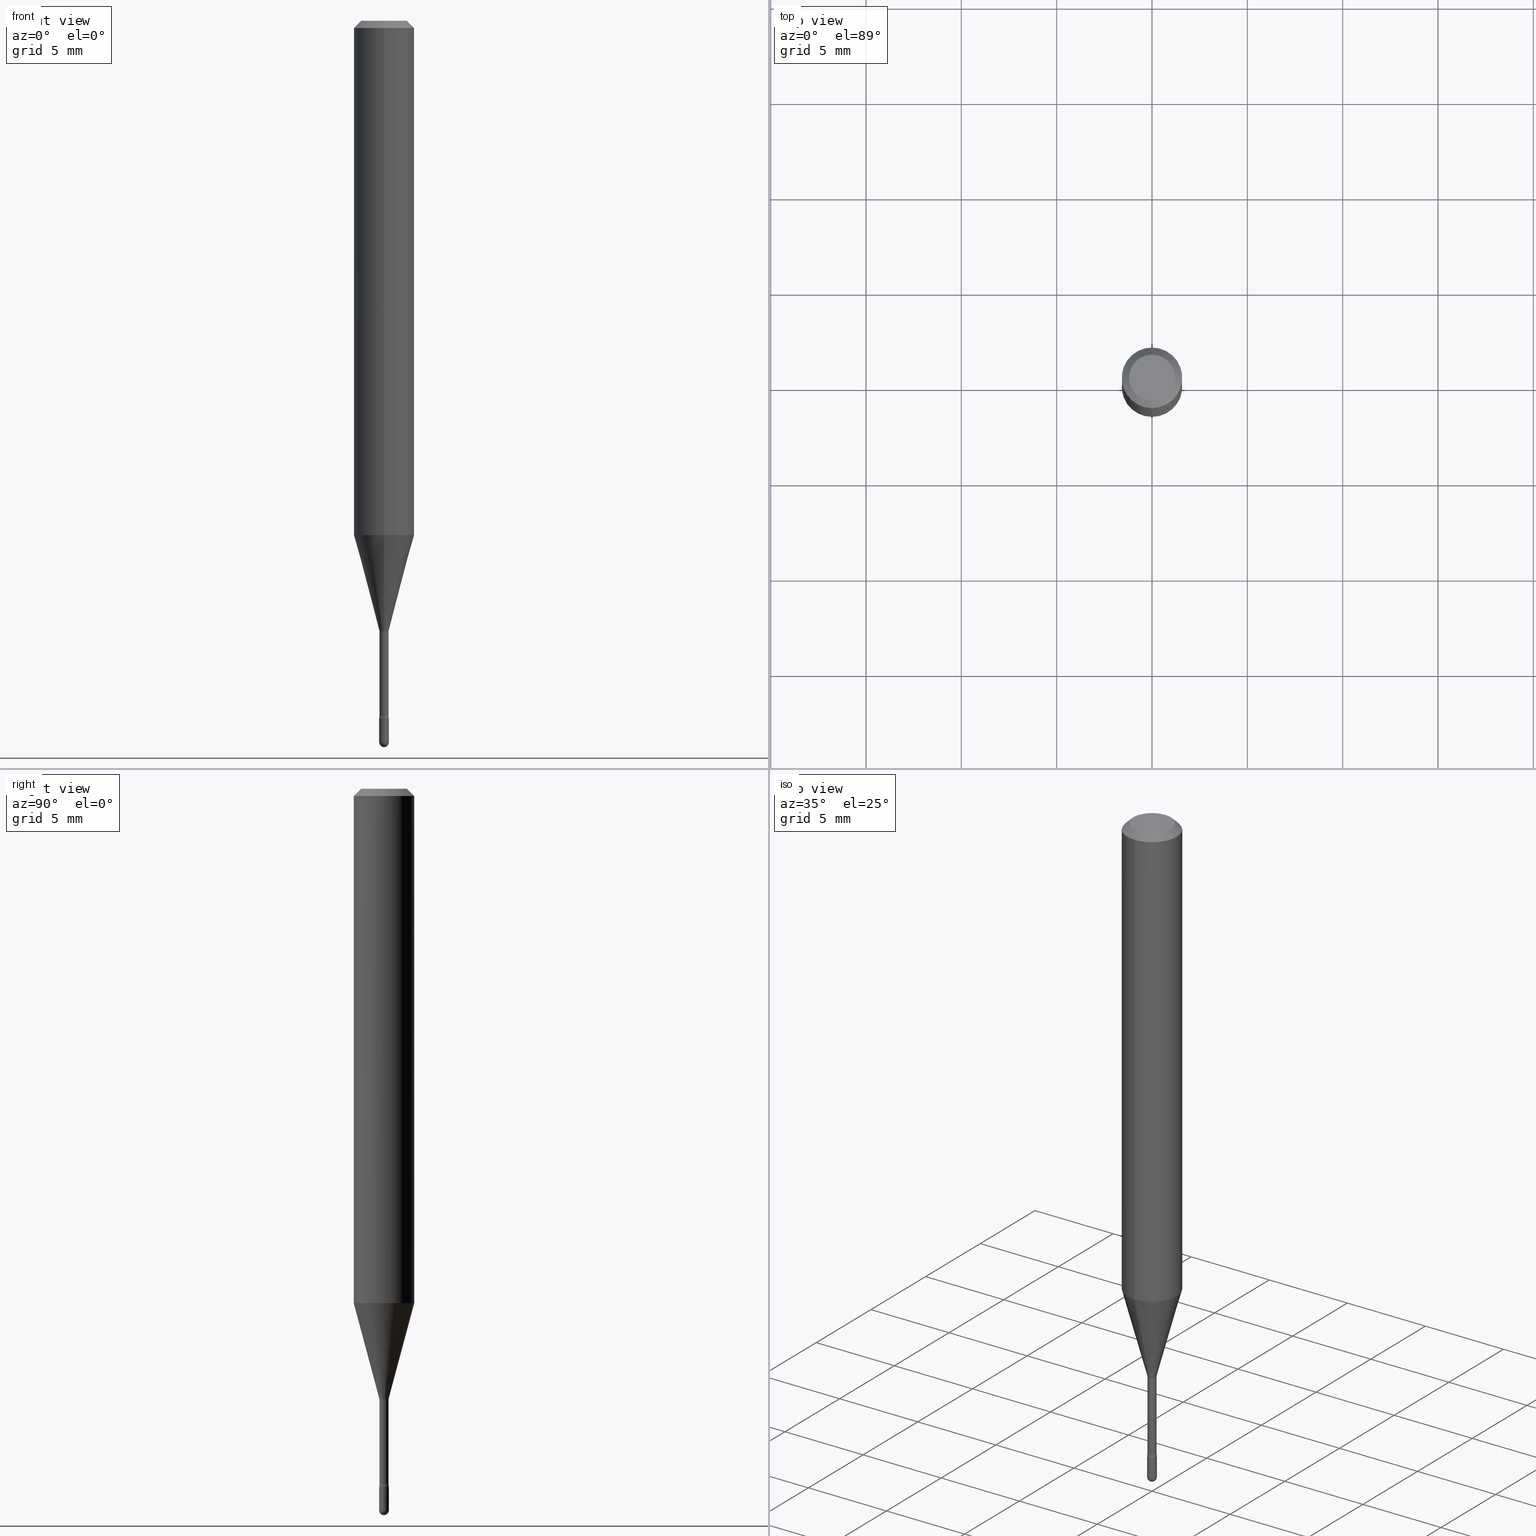
[diagram: canonical four-view strip — front | top / right | iso, engineering-drawing reading convention]
A machine part, canonical four-view strip (front | top / right | iso — engineering-drawing reading convention). The complete STEP part file that produces these views, byte-faithful:
ISO-10303-21;
HEADER;
FILE_DESCRIPTION (( 'STEP AP203' ),
    '1' );
FILE_NAME ('03780.STEP',
    '2024-04-09T20:26:18',
    ( '' ),
    ( '' ),
    'SwSTEP 2.0',
    'SolidWorks 2023',
    '' );
FILE_SCHEMA (( 'CONFIG_CONTROL_DESIGN' ));
ENDSEC;

DATA;
#1 = EDGE_CURVE ( 'NONE', #466, #366, #527, .T. ) ;
#2 = CARTESIAN_POINT ( 'NONE',  ( 3.668069088968971079E-31, -5.237414076180536874E-17, -0.01500000000000008271 ) ) ;
#3 = DIRECTION ( 'NONE',  ( -2.445379392645967337E-29, 3.491609384120338901E-15, 1.000000000000000000 ) ) ;
#4 = ORIENTED_EDGE ( 'NONE', *, *, #334, .F. ) ;
#5 = PERSON_AND_ORGANIZATION ( #55, #410 ) ;
#6 = AXIS2_PLACEMENT_3D ( 'NONE', #300, #419, #159 ) ;
#7 = AXIS2_PLACEMENT_3D ( 'NONE', #354, #406, #453 ) ;
#8 = DIRECTION ( 'NONE',  ( 1.000000000000000000, -7.105427357601001070E-15, 4.926317076644470890E-29 ) ) ;
#9 = DIRECTION ( 'NONE',  ( -2.445379392645967337E-29, 3.491609384120338901E-15, 1.000000000000000000 ) ) ;
#10 = FACE_OUTER_BOUND ( 'NONE', #130, .T. ) ;
#11 = ORIENTED_EDGE ( 'NONE', *, *, #501, .T. ) ;
#12 = ORIENTED_EDGE ( 'NONE', *, *, #334, .T. ) ;
#13 = LINE ( 'NONE', #531, #25 ) ;
#14 = DIRECTION ( 'NONE',  ( -6.982962677686264344E-15, -1.000000000000000000, 0.000000000000000000 ) ) ;
#15 = CLOSED_SHELL ( 'NONE', ( #517, #144, #64, #30, #84, #112, #353, #443, #363, #256, #73, #230, #484, #259 ) ) ;
#16 = AXIS2_PLACEMENT_3D ( 'NONE', #265, #436, #340 ) ;
#17 = DIRECTION ( 'NONE',  ( 1.000000000000000000, -6.982962677686265922E-15, 4.876176775795935793E-29 ) ) ;
#18 = DATE_AND_TIME ( #209, #289 ) ;
#19 = COORDINATED_UNIVERSAL_TIME_OFFSET ( 5, 0, .BEHIND. ) ;
#20 = ORIENTED_EDGE ( 'NONE', *, *, #345, .T. ) ;
#21 = FACE_OUTER_BOUND ( 'NONE', #377, .T. ) ;
#22 = DIRECTION ( 'NONE',  ( -1.000000000000000000, 7.105427357601001070E-15, -4.926315508542082329E-29 ) ) ;
#23 = ORIENTED_EDGE ( 'NONE', *, *, #238, .T. ) ;
#24 = ORIENTED_EDGE ( 'NONE', *, *, #196, .T. ) ;
#25 = VECTOR ( 'NONE', #142, 39.37007874015748143 ) ;
#26 = CIRCLE ( 'NONE', #498, 0.01000000000000000021 ) ;
#27 = CARTESIAN_POINT ( 'NONE',  ( -6.982962677682758991E-17, -0.01000000000000504825, -1.440000000000000169 ) ) ;
#28 = VECTOR ( 'NONE', #277, 39.37007874015748143 ) ;
#29 = ORIENTED_EDGE ( 'NONE', *, *, #286, .F. ) ;
#30 = ADVANCED_FACE ( 'NONE', ( #178 ), #506, .T. ) ;
#31 = CARTESIAN_POINT ( 'NONE',  ( 7.042269065257977501E-17, 0.009911112605659591623, -1.258092501787273276 ) ) ;
#32 = DIRECTION ( 'NONE',  ( 1.000000000000000000, -6.982962677686265922E-15, 4.876176775795935793E-29 ) ) ;
#33 = VECTOR ( 'NONE', #35, 39.37007874015748143 ) ;
#34 = PRODUCT_DEFINITION_FORMATION_WITH_SPECIFIED_SOURCE ( 'ANY', '', #190, .NOT_KNOWN. ) ;
#35 = DIRECTION ( 'NONE',  ( -2.445379392645967337E-29, 3.491609384120338901E-15, 1.000000000000000000 ) ) ;
#36 = CARTESIAN_POINT ( 'NONE',  ( 1.733724275254997086E-16, 0.02439999999999501248, -1.435799999999999965 ) ) ;
#37 = VERTEX_POINT ( 'NONE', #133 ) ;
#38 = TOROIDAL_SURFACE ( 'NONE', #314, 0.02440000000000002237, 0.01500000000000003587 ) ;
#39 = AXIS2_PLACEMENT_3D ( 'NONE', #535, #22, #356 ) ;
#40 = EDGE_CURVE ( 'NONE', #496, #105, #103, .T. ) ;
#41 = COORDINATED_UNIVERSAL_TIME_OFFSET ( 5, 0, .BEHIND. ) ;
#42 = CARTESIAN_POINT ( 'NONE',  ( -1.703842893355140225E-16, -0.02440000000000440775, -1.261974787463811198 ) ) ;
#43 = DATE_AND_TIME ( #123, #272 ) ;
#44 = DIRECTION ( 'NONE',  ( -2.445468806185136597E-29, 3.491481338843145583E-15, 1.000000000000000000 ) ) ;
#45 = DIRECTION ( 'NONE',  ( -2.445379392645967337E-29, 3.491609384120338901E-15, 1.000000000000000000 ) ) ;
#46 = CALENDAR_DATE ( 2024, 9, 4 ) ;
#47 = CARTESIAN_POINT ( 'NONE',  ( 0.01000000000000000021, -6.982962677686265724E-17, 4.876176775795935968E-31 ) ) ;
#48 = ORIENTED_EDGE ( 'NONE', *, *, #165, .F. ) ;
#49 = AXIS2_PLACEMENT_3D ( 'NONE', #532, #182, #17 ) ;
#50 = CC_DESIGN_SECURITY_CLASSIFICATION ( #537, ( #34 ) ) ;
#51 = DIRECTION ( 'NONE',  ( -6.982962677686265922E-15, -1.000000000000000000, 4.370956789862821150E-15 ) ) ;
#52 = CARTESIAN_POINT ( 'NONE',  ( 3.668630792422295430E-29, -5.236609684865145574E-15, -1.500000000000000222 ) ) ;
#53 = PERSON_AND_ORGANIZATION_ROLE ( 'design_supplier' ) ;
#54 = EDGE_CURVE ( 'NONE', #560, #269, #368, .T. ) ;
#55 = PERSON ( 'UNSPECIFIED', 'UNSPECIFIED', 'UNSPECIFIED', ('UNSPECIFIED'), ('UNSPECIFIED'), ('UNSPECIFIED') ) ;
#56 = AXIS2_PLACEMENT_3D ( 'NONE', #464, #371, #518 ) ;
#57 = AXIS2_PLACEMENT_3D ( 'NONE', #502, #458, #467 ) ;
#58 = PRODUCT_RELATED_PRODUCT_CATEGORY ( 'detail', '', ( #190 ) ) ;
#59 = PRODUCT_DEFINITION_SHAPE ( 'NONE', 'NONE',  #233 ) ;
#60 = DIRECTION ( 'NONE',  ( 6.982962677686265133E-15, 1.000000000000000000, 0.000000000000000000 ) ) ;
#61 = VERTEX_POINT ( 'NONE', #488 ) ;
#62 = VECTOR ( 'NONE', #566, 39.37007874015748143 ) ;
#63 =( GEOMETRIC_REPRESENTATION_CONTEXT ( 3 ) GLOBAL_UNCERTAINTY_ASSIGNED_CONTEXT ( ( #509 ) ) GLOBAL_UNIT_ASSIGNED_CONTEXT ( ( #114, #283, #203 ) ) REPRESENTATION_CONTEXT ( 'NONE', 'WORKASPACE' ) );
#64 = ADVANCED_FACE ( 'NONE', ( #21 ), #434, .F. ) ;
#65 = VERTEX_POINT ( 'NONE', #27 ) ;
#66 = LINE ( 'NONE', #110, #382 ) ;
#67 = SPHERICAL_SURFACE ( 'NONE', #219, 0.009999999999999946432 ) ;
#68 = CYLINDRICAL_SURFACE ( 'NONE', #251, 0.01000000000000000021 ) ;
#69 = ORIENTED_EDGE ( 'NONE', *, *, #501, .F. ) ;
#70 = CARTESIAN_POINT ( 'NONE',  ( 3.076513477913008046E-29, -4.392767585331877951E-15, -1.258092501787273276 ) ) ;
#71 = FACE_OUTER_BOUND ( 'NONE', #418, .T. ) ;
#72 = CIRCLE ( 'NONE', #162, 0.06250000000000000000 ) ;
#73 = ADVANCED_FACE ( 'NONE', ( #358 ), #494, .F. ) ;
#74 = LOCAL_TIME ( 16, 26, 18.00000000000000000, #375 ) ;
#75 = CARTESIAN_POINT ( 'NONE',  ( 1.733724275254952959E-16, 0.02439999999999559535, -1.261974787463811198 ) ) ;
#76 = ORIENTED_EDGE ( 'NONE', *, *, #297, .T. ) ;
#77 = FACE_OUTER_BOUND ( 'NONE', #295, .T. ) ;
#78 = DIRECTION ( 'NONE',  ( -2.445468806185136597E-29, 3.491481338843145583E-15, 1.000000000000000000 ) ) ;
#79 = APPROVAL_STATUS ( 'not_yet_approved' ) ;
#80 = CC_DESIGN_DATE_AND_TIME_ASSIGNMENT ( #43, #429, ( #233 ) ) ;
#81 = FACE_OUTER_BOUND ( 'NONE', #145, .T. ) ;
#82 = DIRECTION ( 'NONE',  ( 7.105427357601003436E-15, 1.000000000000000000, 0.000000000000000000 ) ) ;
#83 = ORIENTED_EDGE ( 'NONE', *, *, #100, .F. ) ;
#84 = ADVANCED_FACE ( 'NONE', ( #485 ), #223, .T. ) ;
#85 = AXIS2_PLACEMENT_3D ( 'NONE', #378, #479, #51 ) ;
#86 = CONICAL_SURFACE ( 'NONE', #400, 0.009911112605663983943, 0.2617993877991496854 ) ;
#87 = PERSON_AND_ORGANIZATION ( #55, #410 ) ;
#88 = CARTESIAN_POINT ( 'NONE',  ( 2.022902676298911732E-45, -2.889602922356507576E-31, -8.274094992087870912E-17 ) ) ;
#89 = CARTESIAN_POINT ( 'NONE',  ( 3.086007139302778545E-29, -4.406323010431912813E-15, -1.261974787463811198 ) ) ;
#90 = DIRECTION ( 'NONE',  ( -6.982962677686269866E-15, -1.000000000000000000, 0.000000000000000000 ) ) ;
#91 = DATE_AND_TIME ( #309, #74 ) ;
#92 = ADVANCED_FACE ( 'NONE', ( #10 ), #437, .T. ) ;
#93 = FACE_OUTER_BOUND ( 'NONE', #186, .T. ) ;
#94 = CC_DESIGN_DATE_AND_TIME_ASSIGNMENT ( #294, #515, ( #537 ) ) ;
#95 = AXIS2_PLACEMENT_3D ( 'NONE', #396, #229, #495 ) ;
#96 = DIRECTION ( 'NONE',  ( -2.445468806185136597E-29, 3.491481338843145583E-15, 1.000000000000000000 ) ) ;
#97 = EDGE_LOOP ( 'NONE', ( #231, #526, #11, #76 ) ) ;
#98 = ORIENTED_EDGE ( 'NONE', *, *, #125, .T. ) ;
#99 = DIRECTION ( 'NONE',  ( 1.000000000000000000, -6.982962677686235945E-15, 0.000000000000000000 ) ) ;
#100 = EDGE_CURVE ( 'NONE', #65, #61, #480, .T. ) ;
#101 = EDGE_LOOP ( 'NONE', ( #284, #148, #4, #29 ) ) ;
#102 = PERSON_AND_ORGANIZATION_ROLE ( 'classification_officer' ) ;
#103 = CIRCLE ( 'NONE', #278, 0.009400000000000002104 ) ;
#104 = TOROIDAL_SURFACE ( 'NONE', #529, 0.02440000000000000155, 0.01500000000000002373 ) ;
#105 = VERTEX_POINT ( 'NONE', #307 ) ;
#106 = EDGE_CURVE ( 'NONE', #444, #496, #388, .T. ) ;
#107 = CARTESIAN_POINT ( 'NONE',  ( 3.086007139302778545E-29, -4.406323010431912813E-15, -1.261974787463811198 ) ) ;
#108 = CARTESIAN_POINT ( 'NONE',  ( 6.982962677689787249E-17, 0.009999999999994971245, -1.440000000000000169 ) ) ;
#109 = AXIS2_PLACEMENT_3D ( 'NONE', #381, #9, #179 ) ;
#110 = CARTESIAN_POINT ( 'NONE',  ( -6.563984917025085146E-17, -0.009399999999999993430, 5.108945271019772506E-16 ) ) ;
#111 = DIRECTION ( 'NONE',  ( -6.982962677686265922E-15, -1.000000000000000000, 0.000000000000000000 ) ) ;
#112 = ADVANCED_FACE ( 'NONE', ( #93 ), #422, .T. ) ;
#113 = DIRECTION ( 'NONE',  ( -6.982962677686265922E-15, -1.000000000000000000, 0.000000000000000000 ) ) ;
#114 =( CONVERSION_BASED_UNIT ( 'INCH', #411 ) LENGTH_UNIT ( ) NAMED_UNIT ( #305 ) );
#115 = MANIFOLD_SOLID_BREP ( 'Body-Move/Copy2[2]', #15 ) ;
#116 = AXIS2_PLACEMENT_3D ( 'NONE', #303, #96, #99 ) ;
#117 = ORIENTED_EDGE ( 'NONE', *, *, #54, .T. ) ;
#118 = CIRCLE ( 'NONE', #351, 0.01500000000000002720 ) ;
#119 = DIRECTION ( 'NONE',  ( -6.982962677686264344E-15, -1.000000000000000000, 0.000000000000000000 ) ) ;
#120 = PLANE ( 'NONE',  #56 ) ;
#121 = ORIENTED_EDGE ( 'NONE', *, *, #185, .F. ) ;
#122 = CC_DESIGN_PERSON_AND_ORGANIZATION_ASSIGNMENT ( #477, #522, ( #190 ) ) ;
#123 = CALENDAR_DATE ( 2024, 9, 4 ) ;
#124 = EDGE_LOOP ( 'NONE', ( #322, #176, #530, #491 ) ) ;
#125 = EDGE_CURVE ( 'NONE', #469, #199, #267, .T. ) ;
#126 = AXIS2_PLACEMENT_3D ( 'NONE', #547, #156, #60 ) ;
#127 = DIRECTION ( 'NONE',  ( 6.982962677686265922E-15, 1.000000000000000000, -3.483106191921935554E-15 ) ) ;
#128 = CARTESIAN_POINT ( 'NONE',  ( -0.01000000000000000021, -5.043965887829198901E-15, -1.490000000000000213 ) ) ;
#129 = CARTESIAN_POINT ( 'NONE',  ( 3.076513477913008046E-29, -4.392767585331877951E-15, -1.258092501787273276 ) ) ;
#130 = EDGE_LOOP ( 'NONE', ( #329, #23, #550, #523, #556 ) ) ;
#131 = EDGE_CURVE ( 'NONE', #366, #169, #26, .T. ) ;
#132 = APPLICATION_PROTOCOL_DEFINITION ( 'international standard', 'config_control_design', 1994, #563 ) ;
#133 = CARTESIAN_POINT ( 'NONE',  ( 4.440892098500887472E-16, 0.06249999999999995837, -0.01500000000000030129 ) ) ;
#134 = APPROVAL ( #258, 'UNSPECIFIED' ) ;
#135 = CYLINDRICAL_SURFACE ( 'NONE', #6, 0.009399999999999993430 ) ;
#136 = ORIENTED_EDGE ( 'NONE', *, *, #534, .F. ) ;
#137 = CIRCLE ( 'NONE', #379, 0.01500000000000003240 ) ;
#138 = CC_DESIGN_APPROVAL ( #134, ( #233 ) ) ;
#139 = VERTEX_POINT ( 'NONE', #431 ) ;
#140 = EDGE_CURVE ( 'NONE', #444, #402, #175, .T. ) ;
#141 = CARTESIAN_POINT ( 'NONE',  ( 3.840629472727447874E-16, 0.04749999999999999362, -2.485923956665947867E-16 ) ) ;
#142 = DIRECTION ( 'NONE',  ( -2.445379392645967337E-29, 3.491609384120338901E-15, 1.000000000000000000 ) ) ;
#143 = CARTESIAN_POINT ( 'NONE',  ( 3.643748521215853910E-29, -5.202307194876288105E-15, -1.490000000000000213 ) ) ;
#144 = ADVANCED_FACE ( 'NONE', ( #525 ), #135, .T. ) ;
#145 = EDGE_LOOP ( 'NONE', ( #456, #374, #239, #241 ) ) ;
#146 = VECTOR ( 'NONE', #252, 39.37007874015748854 ) ;
#147 = CC_DESIGN_APPROVAL ( #352, ( #34 ) ) ;
#148 = ORIENTED_EDGE ( 'NONE', *, *, #457, .T. ) ;
#149 = VERTEX_POINT ( 'NONE', #150 ) ;
#150 = CARTESIAN_POINT ( 'NONE',  ( -7.105427357597337501E-17, -0.01000000000000517836, -1.490000000000000213 ) ) ;
#151 = ORIENTED_EDGE ( 'NONE', *, *, #308, .F. ) ;
#152 = DIRECTION ( 'NONE',  ( -2.438088387897960049E-29, 3.491481338843145188E-15, 1.000000000000000000 ) ) ;
#153 = CARTESIAN_POINT ( 'NONE',  ( -3.773273898774340269E-16, -0.04749999999999999362, 8.311049582483736846E-17 ) ) ;
#154 = CARTESIAN_POINT ( 'NONE',  ( -4.287811248607203282E-16, -0.06250000000000005551, -0.01499999999999986587 ) ) ;
#155 = CC_DESIGN_PERSON_AND_ORGANIZATION_ASSIGNMENT ( #333, #565, ( #34 ) ) ;
#156 = DIRECTION ( 'NONE',  ( -1.000000000000000000, 6.982962677686265133E-15, -4.883557194083112340E-29 ) ) ;
#157 = ADVANCED_FACE ( 'NONE', ( #445 ), #407, .T. ) ;
#158 = DIRECTION ( 'NONE',  ( -2.445379392645967337E-29, 3.491609384120338901E-15, 1.000000000000000000 ) ) ;
#159 = DIRECTION ( 'NONE',  ( -6.982962677686265922E-15, -1.000000000000000000, 3.491609384120341662E-15 ) ) ;
#160 = DIRECTION ( 'NONE',  ( -2.445379392645967337E-29, 3.491609384120338901E-15, 1.000000000000000000 ) ) ;
#161 = DIRECTION ( 'NONE',  ( -2.445468806185136877E-29, 3.491481338843145188E-15, 1.000000000000000000 ) ) ;
#162 = AXIS2_PLACEMENT_3D ( 'NONE', #2, #174, #338 ) ;
#163 = AXIS2_PLACEMENT_3D ( 'NONE', #173, #478, #349 ) ;
#164 = PLANE ( 'NONE',  #392 ) ;
#165 = EDGE_CURVE ( 'NONE', #105, #496, #448, .T. ) ;
#166 = DIRECTION ( 'NONE',  ( -2.445379392645967337E-29, 3.491609384120338901E-15, 1.000000000000000000 ) ) ;
#167 = ORIENTED_EDGE ( 'NONE', *, *, #457, .F. ) ;
#168 = APPROVAL_DATE_TIME ( #91, #134 ) ;
#169 = VERTEX_POINT ( 'NONE', #503 ) ;
#170 = FACE_OUTER_BOUND ( 'NONE', #124, .T. ) ;
#171 = CARTESIAN_POINT ( 'NONE',  ( -6.920892941966669973E-17, -0.009911112605668376263, -1.258092501787273276 ) ) ;
#172 = PERSON_AND_ORGANIZATION ( #55, #410 ) ;
#173 = CARTESIAN_POINT ( 'NONE',  ( 3.668069088968971079E-31, -5.237414076180536874E-17, -0.01500000000000008271 ) ) ;
#174 = DIRECTION ( 'NONE',  ( -2.445379392645967337E-29, 3.491609384120338901E-15, 1.000000000000000000 ) ) ;
#175 = CIRCLE ( 'NONE', #109, 0.009399999999999986491 ) ;
#176 = ORIENTED_EDGE ( 'NONE', *, *, #318, .T. ) ;
#177 = LOCAL_TIME ( 16, 26, 18.00000000000000000, #216 ) ;
#178 = FACE_OUTER_BOUND ( 'NONE', #504, .T. ) ;
#179 = DIRECTION ( 'NONE',  ( -6.982962677686265922E-15, -1.000000000000000000, 0.000000000000000000 ) ) ;
#180 = CARTESIAN_POINT ( 'NONE',  ( 3.521346325410193459E-29, -5.027917513133288775E-15, -1.440000000000000169 ) ) ;
#181 = DIRECTION ( 'NONE',  ( -6.982962677686265922E-15, -1.000000000000000000, 3.491609384120340084E-15 ) ) ;
#182 = DIRECTION ( 'NONE',  ( -2.445468806185136597E-29, 3.491481338843145583E-15, 1.000000000000000000 ) ) ;
#183 = CARTESIAN_POINT ( 'NONE',  ( 3.643748521215853910E-29, -5.202307194876288105E-15, -1.490000000000000213 ) ) ;
#184 = ORIENTED_EDGE ( 'NONE', *, *, #564, .F. ) ;
#185 = EDGE_CURVE ( 'NONE', #139, #37, #325, .T. ) ;
#186 = EDGE_LOOP ( 'NONE', ( #98, #420, #222, #355 ) ) ;
#187 = AXIS2_PLACEMENT_3D ( 'NONE', #514, #472, #127 ) ;
#188 = ORIENTED_EDGE ( 'NONE', *, *, #106, .T. ) ;
#189 = APPROVAL_DATE_TIME ( #18, #553 ) ;
#190 = PRODUCT ( '03780', '03780', '', ( #425 ) ) ;
#191 = VERTEX_POINT ( 'NONE', #153 ) ;
#192 = EDGE_CURVE ( 'NONE', #269, #139, #548, .T. ) ;
#193 = CC_DESIGN_PERSON_AND_ORGANIZATION_ASSIGNMENT ( #87, #53, ( #34 ) ) ;
#194 = DIRECTION ( 'NONE',  ( -6.982962677686265922E-15, -1.000000000000000000, 3.491609384120338901E-15 ) ) ;
#195 = CYLINDRICAL_SURFACE ( 'NONE', #449, 0.06250000000000000000 ) ;
#196 = EDGE_CURVE ( 'NONE', #346, #191, #391, .T. ) ;
#197 = CARTESIAN_POINT ( 'NONE',  ( 3.521346325410193459E-29, -5.027917513133288775E-15, -1.440000000000000169 ) ) ;
#198 = TOROIDAL_SURFACE ( 'NONE', #288, 0.02440000000000000155, 0.01500000000000002373 ) ;
#199 = VERTEX_POINT ( 'NONE', #524 ) ;
#200 = DIRECTION ( 'NONE',  ( 6.982962677686265133E-15, 1.000000000000000000, 0.000000000000000000 ) ) ;
#201 = CARTESIAN_POINT ( 'NONE',  ( 3.086119976934868225E-29, -4.406161420520441844E-15, -1.261974787463811198 ) ) ;
#202 = ORIENTED_EDGE ( 'NONE', *, *, #451, .F. ) ;
#203 =( NAMED_UNIT ( * ) SI_UNIT ( $, .STERADIAN. ) SOLID_ANGLE_UNIT ( ) );
#204 = ADVANCED_FACE ( 'NONE', ( #71 ), #68, .T. ) ;
#205 = CARTESIAN_POINT ( 'NONE',  ( 4.364351673553919652E-16, 0.06249999999999995143, -0.01500000000000030129 ) ) ;
#206 = ORIENTED_EDGE ( 'NONE', *, *, #192, .T. ) ;
#207 = VECTOR ( 'NONE', #512, 39.37007874015748143 ) ;
#208 = EDGE_LOOP ( 'NONE', ( #167, #312, #505, #446 ) ) ;
#209 = CALENDAR_DATE ( 2024, 9, 4 ) ;
#210 = ORIENTED_EDGE ( 'NONE', *, *, #551, .T. ) ;
#211 = DIRECTION ( 'NONE',  ( -2.445468806185136597E-29, 3.491481338843145583E-15, 1.000000000000000000 ) ) ;
#212 = APPROVAL_ROLE ( '' ) ;
#213 = EDGE_CURVE ( 'NONE', #469, #269, #468, .T. ) ;
#214 = CARTESIAN_POINT ( 'NONE',  ( -0.01000000000000000021, 7.105427357601002007E-17, -4.918935090254906272E-31 ) ) ;
#215 = DIRECTION ( 'NONE',  ( 1.000000000000000000, -6.982962677686235945E-15, 0.000000000000000000 ) ) ;
#216 = COORDINATED_UNIVERSAL_TIME_OFFSET ( 5, 0, .BEHIND. ) ;
#217 = DIRECTION ( 'NONE',  ( -6.982962677686265922E-15, -1.000000000000000000, 0.000000000000000000 ) ) ;
#218 = AXIS2_PLACEMENT_3D ( 'NONE', #389, #221, #14 ) ;
#219 = AXIS2_PLACEMENT_3D ( 'NONE', #328, #508, #200 ) ;
#220 = DIRECTION ( 'NONE',  ( -6.982962677686265922E-15, -1.000000000000000000, 0.000000000000000000 ) ) ;
#221 = DIRECTION ( 'NONE',  ( -2.445379392645967337E-29, 3.491609384120338901E-15, 1.000000000000000000 ) ) ;
#222 = ORIENTED_EDGE ( 'NONE', *, *, #383, .F. ) ;
#223 = CYLINDRICAL_SURFACE ( 'NONE', #226, 0.06250000000000000000 ) ;
#224 = CALENDAR_DATE ( 2024, 9, 4 ) ;
#225 = ORIENTED_EDGE ( 'NONE', *, *, #165, .T. ) ;
#226 = AXIS2_PLACEMENT_3D ( 'NONE', #384, #482, #266 ) ;
#227 = CIRCLE ( 'NONE', #362, 0.009399999999999986491 ) ;
#228 = EDGE_LOOP ( 'NONE', ( #24, #416 ) ) ;
#229 = DIRECTION ( 'NONE',  ( -2.445379392645967337E-29, 3.491609384120338901E-15, 1.000000000000000000 ) ) ;
#230 = ADVANCED_FACE ( 'NONE', ( #81 ), #38, .F. ) ;
#231 = ORIENTED_EDGE ( 'NONE', *, *, #395, .F. ) ;
#232 = CARTESIAN_POINT ( 'NONE',  ( -6.920892941966669973E-17, -0.009911112605668376263, -1.258092501787273276 ) ) ;
#233 = PRODUCT_DEFINITION ( 'UNKNOWN', '', #34, #320 ) ;
#234 = CARTESIAN_POINT ( 'NONE',  ( -6.563984917021568552E-17, -0.009400000000004999842, -1.435799999999999965 ) ) ;
#235 = AXIS2_PLACEMENT_3D ( 'NONE', #403, #414, #459 ) ;
#236 = AXIS2_PLACEMENT_3D ( 'NONE', #500, #452, #361 ) ;
#237 = CARTESIAN_POINT ( 'NONE',  ( -1.169113584055446105E-44, 1.669184350826100908E-30, 4.780733988912460139E-16 ) ) ;
#238 = EDGE_CURVE ( 'NONE', #273, #169, #427, .T. ) ;
#239 = ORIENTED_EDGE ( 'NONE', *, *, #308, .T. ) ;
#240 = DIRECTION ( 'NONE',  ( 7.105427357601000281E-15, 1.000000000000000000, 0.000000000000000000 ) ) ;
#241 = ORIENTED_EDGE ( 'NONE', *, *, #100, .T. ) ;
#242 = APPLICATION_PROTOCOL_DEFINITION ( 'international standard', 'config_control_design', 1994, #470 ) ;
#243 = AXIS2_PLACEMENT_3D ( 'NONE', #129, #474, #428 ) ;
#244 = AXIS2_PLACEMENT_3D ( 'NONE', #42, #562, #426 ) ;
#245 = CARTESIAN_POINT ( 'NONE',  ( 2.022902676298911732E-45, -2.889602922356507576E-31, -8.274094992087870912E-17 ) ) ;
#246 = CARTESIAN_POINT ( 'NONE',  ( 3.086119976934868225E-29, -4.406161420520441844E-15, -1.261974787463811198 ) ) ;
#247 = CARTESIAN_POINT ( 'NONE',  ( 6.892264536876495998E-17, 0.009399999999994973141, -1.435799999999999965 ) ) ;
#248 = DIRECTION ( 'NONE',  ( -6.982962677686265922E-15, -1.000000000000000000, 3.491609384120338901E-15 ) ) ;
#249 = DIRECTION ( 'NONE',  ( 1.000000000000000000, -6.982962677686235945E-15, 0.000000000000000000 ) ) ;
#250 = COORDINATED_UNIVERSAL_TIME_OFFSET ( 5, 0, .BEHIND. ) ;
#251 = AXIS2_PLACEMENT_3D ( 'NONE', #455, #78, #330 ) ;
#252 = DIRECTION ( 'NONE',  ( -1.807323732225326195E-15, -0.2588190451025176309, 0.9659258262890690894 ) ) ;
#253 = CARTESIAN_POINT ( 'NONE',  ( 6.982962677689890787E-17, 0.009999999999994771752, -1.490000000000000213 ) ) ;
#254 = CIRCLE ( 'NONE', #236, 0.06250000000000000000 ) ;
#255 = ORIENTED_EDGE ( 'NONE', *, *, #140, .F. ) ;
#256 = ADVANCED_FACE ( 'NONE', ( #376 ), #120, .F. ) ;
#257 = ORIENTED_EDGE ( 'NONE', *, *, #40, .T. ) ;
#258 = APPROVAL_STATUS ( 'not_yet_approved' ) ;
#259 = ADVANCED_FACE ( 'NONE', ( #77 ), #198, .F. ) ;
#260 = DIRECTION ( 'NONE',  ( -2.445379392645967337E-29, 3.491609384120338901E-15, 1.000000000000000000 ) ) ;
#261 = DIRECTION ( 'NONE',  ( -2.445468806185136597E-29, 3.491481338843145583E-15, 1.000000000000000000 ) ) ;
#262 = ORIENTED_EDGE ( 'NONE', *, *, #131, .T. ) ;
#263 = APPROVAL_ROLE ( '' ) ;
#264 = CARTESIAN_POINT ( 'NONE',  ( 3.521475080906597305E-29, -5.027733127934130649E-15, -1.440000000000000169 ) ) ;
#265 = CARTESIAN_POINT ( 'NONE',  ( 3.643748521215853910E-29, -5.202307194876288105E-15, -1.490000000000000213 ) ) ;
#266 = DIRECTION ( 'NONE',  ( -6.982962677686265922E-15, -1.000000000000000000, 3.491609384120340084E-15 ) ) ;
#267 = CIRCLE ( 'NONE', #243, 0.009911112605663983943 ) ;
#268 = APPROVAL_PERSON_ORGANIZATION ( #5, #134, #263 ) ;
#269 = VERTEX_POINT ( 'NONE', #557 ) ;
#270 = ADVANCED_BREP_SHAPE_REPRESENTATION ( '03780', ( #299, #115, #57 ), #63 ) ;
#271 = PERSON_AND_ORGANIZATION ( #55, #410 ) ;
#272 = LOCAL_TIME ( 16, 26, 18.00000000000000000, #250 ) ;
#273 = VERTEX_POINT ( 'NONE', #128 ) ;
#274 = DIRECTION ( 'NONE',  ( -2.445379392645967337E-29, 3.491609384120338901E-15, 1.000000000000000000 ) ) ;
#275 = EDGE_CURVE ( 'NONE', #444, #61, #516, .T. ) ;
#276 = DIRECTION ( 'NONE',  ( -2.445379392645966776E-29, 3.491609384120338901E-15, 1.000000000000000000 ) ) ;
#277 = DIRECTION ( 'NONE',  ( -4.851104656540964275E-15, -0.7071067811865500152, -0.7071067811865450192 ) ) ;
#278 = AXIS2_PLACEMENT_3D ( 'NONE', #89, #260, #217 ) ;
#279 = CC_DESIGN_APPROVAL ( #553, ( #537 ) ) ;
#280 = CARTESIAN_POINT ( 'NONE',  ( 3.511075731961080091E-29, -5.013252753719981929E-15, -1.435799999999999965 ) ) ;
#281 = CARTESIAN_POINT ( 'NONE',  ( 3.511204111920619566E-29, -5.013068906310988441E-15, -1.435799999999999965 ) ) ;
#282 = VERTEX_POINT ( 'NONE', #253 ) ;
#283 =( NAMED_UNIT ( * ) PLANE_ANGLE_UNIT ( ) SI_UNIT ( $, .RADIAN. ) );
#284 = ORIENTED_EDGE ( 'NONE', *, *, #310, .F. ) ;
#285 = DIRECTION ( 'NONE',  ( 1.000000000000000000, -7.105427357601001070E-15, 4.926317076644470890E-29 ) ) ;
#286 = EDGE_CURVE ( 'NONE', #282, #273, #487, .T. ) ;
#287 = CLOSED_SHELL ( 'NONE', ( #92, #157, #520, #490, #204 ) ) ;
#288 = AXIS2_PLACEMENT_3D ( 'NONE', #201, #166, #248 ) ;
#289 = LOCAL_TIME ( 16, 26, 18.00000000000000000, #41 ) ;
#290 = EDGE_LOOP ( 'NONE', ( #83, #385 ) ) ;
#291 = EDGE_LOOP ( 'NONE', ( #558, #188, #48, #511 ) ) ;
#292 = SECURITY_CLASSIFICATION_LEVEL ( 'unclassified' ) ;
#293 = ORIENTED_EDGE ( 'NONE', *, *, #125, .F. ) ;
#294 = DATE_AND_TIME ( #224, #177 ) ;
#295 = EDGE_LOOP ( 'NONE', ( #136, #293, #341, #225 ) ) ;
#296 = AXIS2_PLACEMENT_3D ( 'NONE', #513, #45, #528 ) ;
#297 = EDGE_CURVE ( 'NONE', #37, #139, #72, .T. ) ;
#298 = APPROVAL_DATE_TIME ( #421, #352 ) ;
#299 = MANIFOLD_SOLID_BREP ( 'Body-Move/Copy2[1]', #287 ) ;
#300 = CARTESIAN_POINT ( 'NONE',  ( -1.169113584055446105E-44, 1.669184350826100908E-30, 4.780733988912460139E-16 ) ) ;
#301 = ORIENTED_EDGE ( 'NONE', *, *, #192, .F. ) ;
#302 = AXIS2_PLACEMENT_3D ( 'NONE', #183, #483, #486 ) ;
#303 = CARTESIAN_POINT ( 'NONE',  ( 3.521475080906597305E-29, -5.027733127934130649E-15, -1.440000000000000169 ) ) ;
#304 = ORIENTED_EDGE ( 'NONE', *, *, #345, .F. ) ;
#305 = DIMENSIONAL_EXPONENTS ( 1.000000000000000000, 0.000000000000000000, 0.000000000000000000, 0.000000000000000000, 0.000000000000000000, 0.000000000000000000, 0.000000000000000000 ) ;
#306 = ORIENTED_EDGE ( 'NONE', *, *, #395, .T. ) ;
#307 = CARTESIAN_POINT ( 'NONE',  ( -6.563984917022004891E-17, -0.009400000000004406567, -1.261974787463811198 ) ) ;
#308 = EDGE_CURVE ( 'NONE', #402, #65, #137, .T. ) ;
#309 = CALENDAR_DATE ( 2024, 9, 4 ) ;
#310 = EDGE_CURVE ( 'NONE', #369, #282, #460, .T. ) ;
#311 = AXIS2_PLACEMENT_3D ( 'NONE', #36, #8, #82 ) ;
#312 = ORIENTED_EDGE ( 'NONE', *, *, #310, .T. ) ;
#313 = DIRECTION ( 'NONE',  ( -2.445379392645967337E-29, 3.491609384120338901E-15, 1.000000000000000000 ) ) ;
#314 = AXIS2_PLACEMENT_3D ( 'NONE', #281, #412, #336 ) ;
#315 = CONICAL_SURFACE ( 'NONE', #163, 0.06250000000000000000, 0.7853981633974483900 ) ;
#316 = FACE_OUTER_BOUND ( 'NONE', #208, .T. ) ;
#317 = ORIENTED_EDGE ( 'NONE', *, *, #465, .T. ) ;
#318 = EDGE_CURVE ( 'NONE', #199, #469, #554, .T. ) ;
#319 = LINE ( 'NONE', #31, #473 ) ;
#320 = DESIGN_CONTEXT ( 'detailed design', #563, 'design' ) ;
#321 = EDGE_CURVE ( 'NONE', #560, #37, #13, .T. ) ;
#322 = ORIENTED_EDGE ( 'NONE', *, *, #540, .F. ) ;
#323 = DIRECTION ( 'NONE',  ( -6.982962677686265922E-15, -1.000000000000000000, 0.000000000000000000 ) ) ;
#324 = AXIS2_PLACEMENT_3D ( 'NONE', #107, #401, #111 ) ;
#325 = CIRCLE ( 'NONE', #95, 0.06250000000000000000 ) ;
#326 = AXIS2_PLACEMENT_3D ( 'NONE', #245, #160, #450 ) ;
#327 = ORIENTED_EDGE ( 'NONE', *, *, #497, .T. ) ;
#328 = CARTESIAN_POINT ( 'NONE',  ( 3.643748521215853910E-29, -5.202307194876288105E-15, -1.490000000000000213 ) ) ;
#329 = ORIENTED_EDGE ( 'NONE', *, *, #286, .T. ) ;
#330 = DIRECTION ( 'NONE',  ( 1.000000000000000000, -6.982962677686265922E-15, 4.876176775795935793E-29 ) ) ;
#331 = DIRECTION ( 'NONE',  ( -2.445379392645967337E-29, 3.491609384120338901E-15, 1.000000000000000000 ) ) ;
#332 = ORIENTED_EDGE ( 'NONE', *, *, #321, .F. ) ;
#333 = PERSON_AND_ORGANIZATION ( #55, #410 ) ;
#334 = EDGE_CURVE ( 'NONE', #273, #149, #536, .T. ) ;
#335 = FACE_OUTER_BOUND ( 'NONE', #476, .T. ) ;
#336 = DIRECTION ( 'NONE',  ( -6.982962677686265922E-15, -1.000000000000000000, 3.491609384120338901E-15 ) ) ;
#337 = VECTOR ( 'NONE', #161, 39.37007874015748143 ) ;
#338 = DIRECTION ( 'NONE',  ( -6.982962677686265922E-15, -1.000000000000000000, 3.483106191921935554E-15 ) ) ;
#339 = CIRCLE ( 'NONE', #326, 0.04749999999999999362 ) ;
#340 = DIRECTION ( 'NONE',  ( 1.000000000000000000, -6.982962677686235945E-15, 0.000000000000000000 ) ) ;
#341 = ORIENTED_EDGE ( 'NONE', *, *, #451, .T. ) ;
#342 = SHAPE_DEFINITION_REPRESENTATION ( #59, #270 ) ;
#343 = DIRECTION ( 'NONE',  ( -6.982962677686266711E-15, -1.000000000000000000, 3.491609384120338507E-15 ) ) ;
#344 = CARTESIAN_POINT ( 'NONE',  ( 6.679101716144937079E-17, 0.009399999999999993430, 4.452522706805148759E-16 ) ) ;
#345 = EDGE_CURVE ( 'NONE', #169, #366, #357, .T. ) ;
#346 = VERTEX_POINT ( 'NONE', #141 ) ;
#347 = EDGE_CURVE ( 'NONE', #466, #282, #499, .T. ) ;
#348 = EDGE_LOOP ( 'NONE', ( #493, #408, #257, #202 ) ) ;
#349 = DIRECTION ( 'NONE',  ( 6.982962677686265922E-15, 1.000000000000000000, -3.483106191921935554E-15 ) ) ;
#350 = AXIS2_PLACEMENT_3D ( 'NONE', #108, #276, #541 ) ;
#351 = AXIS2_PLACEMENT_3D ( 'NONE', #75, #285, #240 ) ;
#352 = APPROVAL ( #433, 'UNSPECIFIED' ) ;
#353 = ADVANCED_FACE ( 'NONE', ( #170 ), #86, .T. ) ;
#354 = CARTESIAN_POINT ( 'NONE',  ( -1.169113584055446105E-44, 1.669184350826100908E-30, 4.780733988912460139E-16 ) ) ;
#355 = ORIENTED_EDGE ( 'NONE', *, *, #213, .F. ) ;
#356 = DIRECTION ( 'NONE',  ( -7.105427357601000281E-15, -1.000000000000000000, 0.000000000000000000 ) ) ;
#357 = CIRCLE ( 'NONE', #116, 0.01000000000000000021 ) ;
#358 = FACE_OUTER_BOUND ( 'NONE', #290, .T. ) ;
#359 = CARTESIAN_POINT ( 'NONE',  ( 3.521475080906597305E-29, -5.027733127934130649E-15, -1.440000000000000169 ) ) ;
#360 = AXIS2_PLACEMENT_3D ( 'NONE', #447, #274, #194 ) ;
#361 = DIRECTION ( 'NONE',  ( -6.982962677686265922E-15, -1.000000000000000000, 4.370956789862821150E-15 ) ) ;
#362 = AXIS2_PLACEMENT_3D ( 'NONE', #280, #417, #113 ) ;
#363 = ADVANCED_FACE ( 'NONE', ( #438 ), #315, .T. ) ;
#364 = CYLINDRICAL_SURFACE ( 'NONE', #7, 0.009399999999999993430 ) ;
#365 = DIRECTION ( 'NONE',  ( -2.445379392645967337E-29, 3.491609384120338901E-15, 1.000000000000000000 ) ) ;
#366 = VERTEX_POINT ( 'NONE', #386 ) ;
#367 = DIRECTION ( 'NONE',  ( -2.445379392645967337E-29, 3.491609384120338901E-15, 1.000000000000000000 ) ) ;
#368 = CIRCLE ( 'NONE', #85, 0.06250000000000000000 ) ;
#369 = VERTEX_POINT ( 'NONE', #52 ) ;
#370 = LOCAL_TIME ( 16, 26, 18.00000000000000000, #19 ) ;
#371 = DIRECTION ( 'NONE',  ( 2.445379392645966776E-29, -3.491609384120338901E-15, -1.000000000000000000 ) ) ;
#372 = EDGE_LOOP ( 'NONE', ( #332, #117, #206, #430 ) ) ;
#373 = PERSON_AND_ORGANIZATION_ROLE ( 'creator' ) ;
#374 = ORIENTED_EDGE ( 'NONE', *, *, #561, .F. ) ;
#375 = COORDINATED_UNIVERSAL_TIME_OFFSET ( 5, 0, .BEHIND. ) ;
#376 = FACE_OUTER_BOUND ( 'NONE', #228, .T. ) ;
#377 = EDGE_LOOP ( 'NONE', ( #255, #475, #327, #151 ) ) ;
#378 = CARTESIAN_POINT ( 'NONE',  ( 2.596572559451962557E-29, -3.707488965678223173E-15, -1.061828102118093087 ) ) ;
#379 = AXIS2_PLACEMENT_3D ( 'NONE', #387, #519, #90 ) ;
#380 = DIRECTION ( 'NONE',  ( -2.445379392645967337E-29, 3.491609384120338901E-15, 1.000000000000000000 ) ) ;
#381 = CARTESIAN_POINT ( 'NONE',  ( 3.511075731961080091E-29, -5.013252753719981929E-15, -1.435799999999999965 ) ) ;
#382 = VECTOR ( 'NONE', #367, 39.37007874015748143 ) ;
#383 = EDGE_CURVE ( 'NONE', #269, #560, #254, .T. ) ;
#384 = CARTESIAN_POINT ( 'NONE',  ( -1.169113584055446105E-44, 1.669184350826100908E-30, 4.780733988912460139E-16 ) ) ;
#385 = ORIENTED_EDGE ( 'NONE', *, *, #497, .F. ) ;
#386 = CARTESIAN_POINT ( 'NONE',  ( 0.01000000000000000021, -5.097562754710993158E-15, -1.440000000000000169 ) ) ;
#387 = CARTESIAN_POINT ( 'NONE',  ( -1.703842893355099302E-16, -0.02440000000000503225, -1.435799999999999965 ) ) ;
#388 = LINE ( 'NONE', #344, #409 ) ;
#389 = CARTESIAN_POINT ( 'NONE',  ( 3.076513477913008046E-29, -4.392767585331877951E-15, -1.258092501787273276 ) ) ;
#390 = ORIENTED_EDGE ( 'NONE', *, *, #238, .F. ) ;
#391 = CIRCLE ( 'NONE', #439, 0.04749999999999999362 ) ;
#392 = AXIS2_PLACEMENT_3D ( 'NONE', #359, #152, #32 ) ;
#393 = APPROVAL_ROLE ( '' ) ;
#394 = ORIENTED_EDGE ( 'NONE', *, *, #383, .T. ) ;
#395 = EDGE_CURVE ( 'NONE', #191, #139, #544, .T. ) ;
#396 = CARTESIAN_POINT ( 'NONE',  ( 3.668069088968971079E-31, -5.237414076180536874E-17, -0.01500000000000008271 ) ) ;
#397 = EDGE_LOOP ( 'NONE', ( #394, #546, #121, #301 ) ) ;
#398 = AXIS2_PLACEMENT_3D ( 'NONE', #424, #44, #215 ) ;
#399 = FACE_OUTER_BOUND ( 'NONE', #372, .T. ) ;
#400 = AXIS2_PLACEMENT_3D ( 'NONE', #70, #413, #119 ) ;
#401 = DIRECTION ( 'NONE',  ( -2.445379392645967337E-29, 3.491609384120338901E-15, 1.000000000000000000 ) ) ;
#402 = VERTEX_POINT ( 'NONE', #234 ) ;
#403 = CARTESIAN_POINT ( 'NONE',  ( 3.643748521215853910E-29, -5.202307194876288105E-15, -1.490000000000000213 ) ) ;
#404 =( LENGTH_UNIT ( ) NAMED_UNIT ( * ) SI_UNIT ( $, .METRE. ) );
#405 = ORIENTED_EDGE ( 'NONE', *, *, #140, .T. ) ;
#406 = DIRECTION ( 'NONE',  ( -2.445379392645967337E-29, 3.491609384120338901E-15, 1.000000000000000000 ) ) ;
#407 = SPHERICAL_SURFACE ( 'NONE', #126, 0.009999999999999946432 ) ;
#408 = ORIENTED_EDGE ( 'NONE', *, *, #534, .T. ) ;
#409 = VECTOR ( 'NONE', #331, 39.37007874015748143 ) ;
#410 = ORGANIZATION ( 'UNSPECIFIED', 'UNSPECIFIED', '' ) ;
#411 = LENGTH_MEASURE_WITH_UNIT ( LENGTH_MEASURE( 0.02539999999999999897 ), #404 );
#412 = DIRECTION ( 'NONE',  ( -2.445379392645967337E-29, 3.491609384120338901E-15, 1.000000000000000000 ) ) ;
#413 = DIRECTION ( 'NONE',  ( -2.445379392645967337E-29, 3.491609384120338901E-15, 1.000000000000000000 ) ) ;
#414 = DIRECTION ( 'NONE',  ( 1.000000000000000000, -6.982962677686265922E-15, 4.883557194083112340E-29 ) ) ;
#415 = CARTESIAN_POINT ( 'NONE',  ( -4.364351673553916201E-16, -0.06250000000000000000, 6.962989853987672938E-16 ) ) ;
#416 = ORIENTED_EDGE ( 'NONE', *, *, #564, .T. ) ;
#417 = DIRECTION ( 'NONE',  ( -2.445379392645967337E-29, 3.491609384120338901E-15, 1.000000000000000000 ) ) ;
#418 = EDGE_LOOP ( 'NONE', ( #390, #12, #317, #432, #304 ) ) ;
#419 = DIRECTION ( 'NONE',  ( -2.445379392645967337E-29, 3.491609384120338901E-15, 1.000000000000000000 ) ) ;
#420 = ORIENTED_EDGE ( 'NONE', *, *, #540, .T. ) ;
#421 = DATE_AND_TIME ( #46, #370 ) ;
#422 = CONICAL_SURFACE ( 'NONE', #296, 0.009911112605663983943, 0.2617993877991496854 ) ;
#423 = CIRCLE ( 'NONE', #244, 0.01500000000000002720 ) ;
#424 = CARTESIAN_POINT ( 'NONE',  ( 3.643748521215853910E-29, -5.202307194876288105E-15, -1.490000000000000213 ) ) ;
#425 = MECHANICAL_CONTEXT ( 'NONE', #470, 'mechanical' ) ;
#426 = DIRECTION ( 'NONE',  ( -6.982962677686265133E-15, -1.000000000000000000, 0.000000000000000000 ) ) ;
#427 = LINE ( 'NONE', #214, #337 ) ;
#428 = DIRECTION ( 'NONE',  ( -6.982962677686264344E-15, -1.000000000000000000, 0.000000000000000000 ) ) ;
#429 = DATE_TIME_ROLE ( 'creation_date' ) ;
#430 = ORIENTED_EDGE ( 'NONE', *, *, #297, .F. ) ;
#431 = CARTESIAN_POINT ( 'NONE',  ( -4.364351673553912750E-16, -0.06250000000000005551, -0.01499999999999986587 ) ) ;
#432 = ORIENTED_EDGE ( 'NONE', *, *, #1, .T. ) ;
#433 = APPROVAL_STATUS ( 'not_yet_approved' ) ;
#434 = TOROIDAL_SURFACE ( 'NONE', #360, 0.02440000000000002237, 0.01500000000000003587 ) ;
#435 = APPROVAL_PERSON_ORGANIZATION ( #441, #553, #393 ) ;
#436 = DIRECTION ( 'NONE',  ( -2.445468806185136597E-29, 3.491481338843145583E-15, 1.000000000000000000 ) ) ;
#437 = CYLINDRICAL_SURFACE ( 'NONE', #49, 0.01000000000000000021 ) ;
#438 = FACE_OUTER_BOUND ( 'NONE', #97, .T. ) ;
#439 = AXIS2_PLACEMENT_3D ( 'NONE', #88, #380, #343 ) ;
#440 = AXIS2_PLACEMENT_3D ( 'NONE', #197, #365, #323 ) ;
#441 = PERSON_AND_ORGANIZATION ( #55, #410 ) ;
#442 = ORIENTED_EDGE ( 'NONE', *, *, #106, .F. ) ;
#443 = ADVANCED_FACE ( 'NONE', ( #399 ), #195, .T. ) ;
#444 = VERTEX_POINT ( 'NONE', #247 ) ;
#445 = FACE_OUTER_BOUND ( 'NONE', #101, .T. ) ;
#446 = ORIENTED_EDGE ( 'NONE', *, *, #465, .F. ) ;
#447 = CARTESIAN_POINT ( 'NONE',  ( 3.511204111920619566E-29, -5.013068906310988441E-15, -1.435799999999999965 ) ) ;
#448 = CIRCLE ( 'NONE', #324, 0.009400000000000002104 ) ;
#449 = AXIS2_PLACEMENT_3D ( 'NONE', #237, #313, #181 ) ;
#450 = DIRECTION ( 'NONE',  ( -6.982962677686266711E-15, -1.000000000000000000, 3.491609384120338507E-15 ) ) ;
#451 = EDGE_CURVE ( 'NONE', #469, #105, #423, .T. ) ;
#452 = DIRECTION ( 'NONE',  ( -2.445379392645967337E-29, 3.491609384120338901E-15, 1.000000000000000000 ) ) ;
#453 = DIRECTION ( 'NONE',  ( -6.982962677686265922E-15, -1.000000000000000000, 3.491609384120341662E-15 ) ) ;
#454 = CC_DESIGN_PERSON_AND_ORGANIZATION_ASSIGNMENT ( #172, #373, ( #233 ) ) ;
#455 = CARTESIAN_POINT ( 'NONE',  ( 0.000000000000000000, 0.000000000000000000, 0.000000000000000000 ) ) ;
#456 = ORIENTED_EDGE ( 'NONE', *, *, #275, .F. ) ;
#457 = EDGE_CURVE ( 'NONE', #369, #149, #543, .T. ) ;
#458 = DIRECTION ( 'NONE',  ( 0.000000000000000000, 0.000000000000000000, 1.000000000000000000 ) ) ;
#459 = DIRECTION ( 'NONE',  ( 6.982962677686265922E-15, 1.000000000000000000, 0.000000000000000000 ) ) ;
#460 = CIRCLE ( 'NONE', #235, 0.009999999999999946432 ) ;
#461 = APPROVAL_PERSON_ORGANIZATION ( #559, #352, #212 ) ;
#462 = LINE ( 'NONE', #205, #207 ) ;
#463 = CARTESIAN_POINT ( 'NONE',  ( 6.679101716148456138E-17, 0.009399999999995595906, -1.261974787463811198 ) ) ;
#464 = CARTESIAN_POINT ( 'NONE',  ( 3.316907271900976096E-16, 0.04749999999999999362, 3.181477873946760564E-17 ) ) ;
#465 = EDGE_CURVE ( 'NONE', #149, #466, #481, .T. ) ;
#466 = VERTEX_POINT ( 'NONE', #533 ) ;
#467 = DIRECTION ( 'NONE',  ( 1.000000000000000000, 0.000000000000000000, 0.000000000000000000 ) ) ;
#468 = LINE ( 'NONE', #171, #146 ) ;
#469 = VERTEX_POINT ( 'NONE', #232 ) ;
#470 = APPLICATION_CONTEXT ( 'configuration controlled 3d designs of mechanical parts and assemblies' ) ;
#471 = AXIS2_PLACEMENT_3D ( 'NONE', #180, #3, #220 ) ;
#472 = DIRECTION ( 'NONE',  ( 2.445379392645967337E-29, -3.491609384120338901E-15, -1.000000000000000000 ) ) ;
#473 = VECTOR ( 'NONE', #542, 39.37007874015748143 ) ;
#474 = DIRECTION ( 'NONE',  ( -2.445379392645967337E-29, 3.491609384120338901E-15, 1.000000000000000000 ) ) ;
#475 = ORIENTED_EDGE ( 'NONE', *, *, #275, .T. ) ;
#476 = EDGE_LOOP ( 'NONE', ( #442, #405, #210, #538 ) ) ;
#477 = PERSON_AND_ORGANIZATION ( #55, #410 ) ;
#478 = DIRECTION ( 'NONE',  ( 2.445379392645967337E-29, -3.491609384120338901E-15, -1.000000000000000000 ) ) ;
#479 = DIRECTION ( 'NONE',  ( -2.445379392645967337E-29, 3.491609384120338901E-15, 1.000000000000000000 ) ) ;
#480 = CIRCLE ( 'NONE', #471, 0.01000000000000000021 ) ;
#481 = CIRCLE ( 'NONE', #16, 0.01000000000000000021 ) ;
#482 = DIRECTION ( 'NONE',  ( -2.445379392645967337E-29, 3.491609384120338901E-15, 1.000000000000000000 ) ) ;
#483 = DIRECTION ( 'NONE',  ( -2.445468806185136597E-29, 3.491481338843145583E-15, 1.000000000000000000 ) ) ;
#484 = ADVANCED_FACE ( 'NONE', ( #335 ), #364, .T. ) ;
#485 = FACE_OUTER_BOUND ( 'NONE', #397, .T. ) ;
#486 = DIRECTION ( 'NONE',  ( 1.000000000000000000, -6.982962677686235945E-15, 0.000000000000000000 ) ) ;
#487 = CIRCLE ( 'NONE', #398, 0.01000000000000000021 ) ;
#488 = CARTESIAN_POINT ( 'NONE',  ( 7.105427357604538322E-17, 0.009999999999994993796, -1.440000000000000169 ) ) ;
#489 = AXIS2_PLACEMENT_3D ( 'NONE', #143, #211, #510 ) ;
#490 = ADVANCED_FACE ( 'NONE', ( #316 ), #67, .T. ) ;
#491 = ORIENTED_EDGE ( 'NONE', *, *, #54, .F. ) ;
#492 = CC_DESIGN_PERSON_AND_ORGANIZATION_ASSIGNMENT ( #271, #102, ( #537 ) ) ;
#493 = ORIENTED_EDGE ( 'NONE', *, *, #318, .F. ) ;
#494 = PLANE ( 'NONE',  #350 ) ;
#495 = DIRECTION ( 'NONE',  ( -6.982962677686265922E-15, -1.000000000000000000, 3.483106191921935554E-15 ) ) ;
#496 = VERTEX_POINT ( 'NONE', #463 ) ;
#497 = EDGE_CURVE ( 'NONE', #61, #65, #507, .T. ) ;
#498 = AXIS2_PLACEMENT_3D ( 'NONE', #264, #261, #249 ) ;
#499 = CIRCLE ( 'NONE', #489, 0.01000000000000000021 ) ;
#500 = CARTESIAN_POINT ( 'NONE',  ( 2.596572559451962557E-29, -3.707488965678223173E-15, -1.061828102118093087 ) ) ;
#501 = EDGE_CURVE ( 'NONE', #346, #37, #462, .T. ) ;
#502 = CARTESIAN_POINT ( 'NONE',  ( 0.000000000000000000, 0.000000000000000000, 0.000000000000000000 ) ) ;
#503 = CARTESIAN_POINT ( 'NONE',  ( -0.01000000000000000021, -5.043965887829198901E-15, -1.440000000000000169 ) ) ;
#504 = EDGE_LOOP ( 'NONE', ( #184, #306, #521, #69 ) ) ;
#505 = ORIENTED_EDGE ( 'NONE', *, *, #347, .F. ) ;
#506 = CONICAL_SURFACE ( 'NONE', #187, 0.06250000000000000000, 0.7853981633974483900 ) ;
#507 = CIRCLE ( 'NONE', #440, 0.01000000000000000021 ) ;
#508 = DIRECTION ( 'NONE',  ( -1.000000000000000000, 6.982962677686265133E-15, -4.883557194083112340E-29 ) ) ;
#509 = UNCERTAINTY_MEASURE_WITH_UNIT (LENGTH_MEASURE( 1.000000000000000082E-05 ), #114, 'distance_accuracy_value', 'NONE');
#510 = DIRECTION ( 'NONE',  ( 1.000000000000000000, -6.982962677686235945E-15, 0.000000000000000000 ) ) ;
#511 = ORIENTED_EDGE ( 'NONE', *, *, #551, .F. ) ;
#512 = DIRECTION ( 'NONE',  ( 4.937700262164548042E-15, 0.7071067811865451302, -0.7071067811865499042 ) ) ;
#513 = CARTESIAN_POINT ( 'NONE',  ( 3.076513477913008046E-29, -4.392767585331877951E-15, -1.258092501787273276 ) ) ;
#514 = CARTESIAN_POINT ( 'NONE',  ( 3.668069088968971079E-31, -5.237414076180536874E-17, -0.01500000000000008271 ) ) ;
#515 = DATE_TIME_ROLE ( 'classification_date' ) ;
#516 = CIRCLE ( 'NONE', #311, 0.01500000000000003240 ) ;
#517 = ADVANCED_FACE ( 'NONE', ( #555 ), #104, .F. ) ;
#518 = DIRECTION ( 'NONE',  ( 6.982962677686265922E-15, 1.000000000000000000, -3.491609384120338901E-15 ) ) ;
#519 = DIRECTION ( 'NONE',  ( -1.000000000000000000, 6.982962677686265922E-15, -4.883557194083112901E-29 ) ) ;
#520 = ADVANCED_FACE ( 'NONE', ( #552 ), #164, .T. ) ;
#521 = ORIENTED_EDGE ( 'NONE', *, *, #185, .T. ) ;
#522 = PERSON_AND_ORGANIZATION_ROLE ( 'design_owner' ) ;
#523 = ORIENTED_EDGE ( 'NONE', *, *, #1, .F. ) ;
#524 = CARTESIAN_POINT ( 'NONE',  ( 2.572559502513342919E-16, 0.009911112605659591623, -1.258092501787273276 ) ) ;
#525 = FACE_OUTER_BOUND ( 'NONE', #291, .T. ) ;
#526 = ORIENTED_EDGE ( 'NONE', *, *, #196, .F. ) ;
#527 = LINE ( 'NONE', #47, #62 ) ;
#528 = DIRECTION ( 'NONE',  ( -6.982962677686264344E-15, -1.000000000000000000, 0.000000000000000000 ) ) ;
#529 = AXIS2_PLACEMENT_3D ( 'NONE', #246, #158, #549 ) ;
#530 = ORIENTED_EDGE ( 'NONE', *, *, #213, .T. ) ;
#531 = CARTESIAN_POINT ( 'NONE',  ( 4.440892098500625669E-16, 0.06250000000000000000, 2.598478123837248819E-16 ) ) ;
#532 = CARTESIAN_POINT ( 'NONE',  ( 0.000000000000000000, 0.000000000000000000, 0.000000000000000000 ) ) ;
#533 = CARTESIAN_POINT ( 'NONE',  ( 0.01000000000000000021, -5.184849788182071492E-15, -1.490000000000000213 ) ) ;
#534 = EDGE_CURVE ( 'NONE', #199, #496, #118, .T. ) ;
#535 = CARTESIAN_POINT ( 'NONE',  ( 3.643748521215853910E-29, -5.202307194876288105E-15, -1.490000000000000213 ) ) ;
#536 = CIRCLE ( 'NONE', #302, 0.01000000000000000021 ) ;
#537 = SECURITY_CLASSIFICATION ( '', '', #292 ) ;
#538 = ORIENTED_EDGE ( 'NONE', *, *, #40, .F. ) ;
#539 = EDGE_LOOP ( 'NONE', ( #262, #20 ) ) ;
#540 = EDGE_CURVE ( 'NONE', #199, #560, #319, .T. ) ;
#541 = DIRECTION ( 'NONE',  ( -6.982962677686265922E-15, -1.000000000000000000, 3.491609384120338901E-15 ) ) ;
#542 = DIRECTION ( 'NONE',  ( 1.839019923739596371E-15, 0.2588190451025244032, 0.9659258262890673130 ) ) ;
#543 = CIRCLE ( 'NONE', #39, 0.009999999999999946432 ) ;
#544 = LINE ( 'NONE', #154, #28 ) ;
#545 = CARTESIAN_POINT ( 'NONE',  ( 4.440892098500884514E-16, 0.06249999999999629463, -1.061828102118093309 ) ) ;
#546 = ORIENTED_EDGE ( 'NONE', *, *, #321, .T. ) ;
#547 = CARTESIAN_POINT ( 'NONE',  ( 3.643748521215853910E-29, -5.202307194876288105E-15, -1.490000000000000213 ) ) ;
#548 = LINE ( 'NONE', #415, #33 ) ;
#549 = DIRECTION ( 'NONE',  ( -6.982962677686265922E-15, -1.000000000000000000, 3.491609384120338901E-15 ) ) ;
#550 = ORIENTED_EDGE ( 'NONE', *, *, #131, .F. ) ;
#551 = EDGE_CURVE ( 'NONE', #402, #105, #66, .T. ) ;
#552 = FACE_OUTER_BOUND ( 'NONE', #539, .T. ) ;
#553 = APPROVAL ( #79, 'UNSPECIFIED' ) ;
#554 = CIRCLE ( 'NONE', #218, 0.009911112605663983943 ) ;
#555 = FACE_OUTER_BOUND ( 'NONE', #348, .T. ) ;
#556 = ORIENTED_EDGE ( 'NONE', *, *, #347, .T. ) ;
#557 = CARTESIAN_POINT ( 'NONE',  ( -4.364351673553657356E-16, -0.06250000000000371925, -1.061828102118092865 ) ) ;
#558 = ORIENTED_EDGE ( 'NONE', *, *, #561, .T. ) ;
#559 = PERSON_AND_ORGANIZATION ( #55, #410 ) ;
#560 = VERTEX_POINT ( 'NONE', #545 ) ;
#561 = EDGE_CURVE ( 'NONE', #402, #444, #227, .T. ) ;
#562 = DIRECTION ( 'NONE',  ( -1.000000000000000000, 6.982962677686265922E-15, -4.883557194083112901E-29 ) ) ;
#563 = APPLICATION_CONTEXT ( 'configuration controlled 3d designs of mechanical parts and assemblies' ) ;
#564 = EDGE_CURVE ( 'NONE', #191, #346, #339, .T. ) ;
#565 = PERSON_AND_ORGANIZATION_ROLE ( 'creator' ) ;
#566 = DIRECTION ( 'NONE',  ( -2.445468806185136877E-29, 3.491481338843145188E-15, 1.000000000000000000 ) ) ;
ENDSEC;
END-ISO-10303-21;
